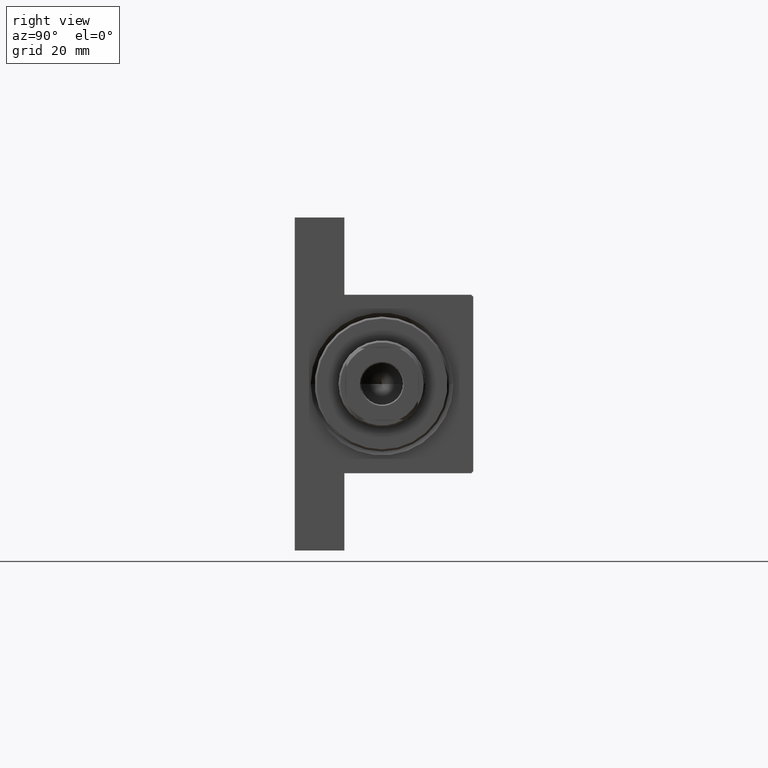
[diagram: clean part render]
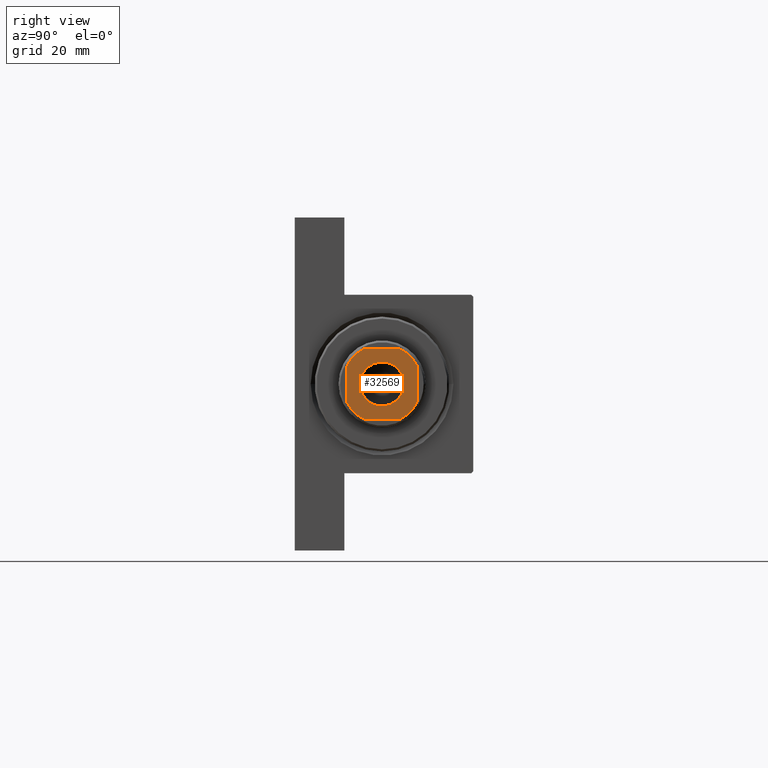
[diagram: same view with one face highlighted and labeled with its STEP entity id]
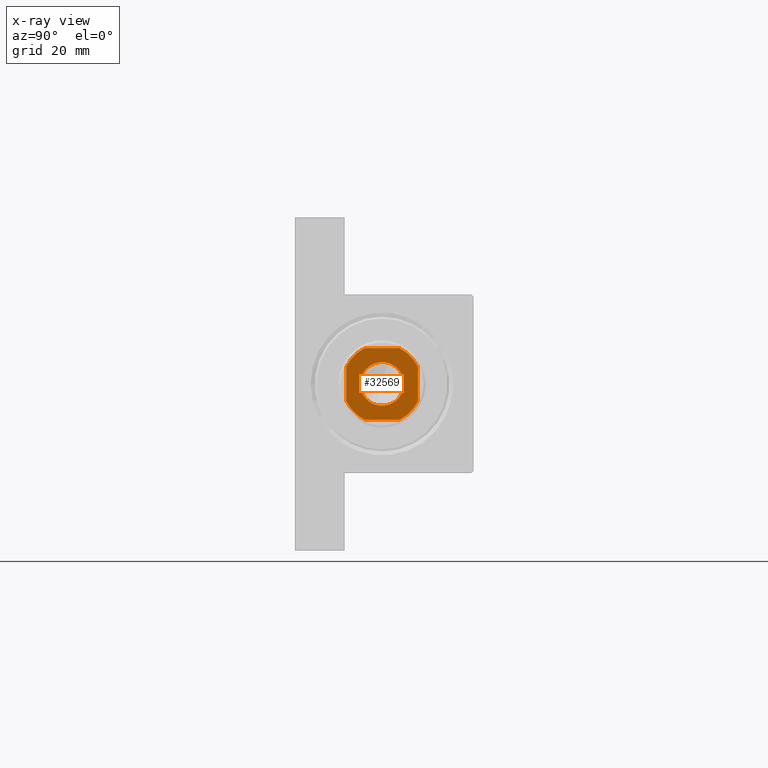
[diagram: x-ray of the same camera — body ghosted, the highlighted face saturated]
A machine part, right view. The second image highlights one B-rep face of the part: STEP entity #32569.
The next image is the same camera in x-ray: the body ghosted, the highlighted face saturated — about 0% of this face is hidden behind the body in this view.
In plain terms, the highlighted planar face has unit normal (1, 0, 0).
Its self-contained STEP definition (entity closure, byte-faithful):
#244 = CARTESIAN_POINT ( 'NONE',  ( 0.000000000000000000, 0.000000000000000000, 123.0000000000000000 ) ) ;
#320 = DIRECTION ( 'NONE',  ( 1.000000000000000000, 0.000000000000000000, 0.000000000000000000 ) ) ;
#721 = VERTEX_POINT ( 'NONE', #32589 ) ;
#897 = CARTESIAN_POINT ( 'NONE',  ( 0.000000000000000000, 0.000000000000000000, 123.0000000000000000 ) ) ;
#1396 = VERTEX_POINT ( 'NONE', #20605 ) ;
#1959 = ORIENTED_EDGE ( 'NONE', *, *, #42703, .T. ) ;
#2520 = CARTESIAN_POINT ( 'NONE',  ( 8.999999999999998224, 4.358898943540600257, 123.0000000000000000 ) ) ;
#2529 = DIRECTION ( 'NONE',  ( -1.000000000000000000, -0.000000000000000000, -0.000000000000000000 ) ) ;
#2768 = PLANE ( 'NONE',  #4955 ) ;
#3167 = EDGE_CURVE ( 'NONE', #33212, #34451, #23285, .T. ) ;
#3175 = ORIENTED_EDGE ( 'NONE', *, *, #43231, .T. ) ;
#3539 = CARTESIAN_POINT ( 'NONE',  ( -4.358898943540671311, 8.999999999999998224, 123.0000000000000000 ) ) ;
#3720 = DIRECTION ( 'NONE',  ( 0.000000000000000000, -0.000000000000000000, -1.000000000000000000 ) ) ;
#4076 = ORIENTED_EDGE ( 'NONE', *, *, #22564, .T. ) ;
#4786 = VECTOR ( 'NONE', #25179, 1000.000000000000000 ) ;
#4955 = AXIS2_PLACEMENT_3D ( 'NONE', #21050, #32108, #39557 ) ;
#5841 = AXIS2_PLACEMENT_3D ( 'NONE', #36678, #18408, #25856 ) ;
#5873 = CARTESIAN_POINT ( 'NONE',  ( -9.000000000000003553, 4.358898943540662430, 123.0000000000000000 ) ) ;
#6297 = ORIENTED_EDGE ( 'NONE', *, *, #15639, .T. ) ;
#6351 = DIRECTION ( 'NONE',  ( -0.000000000000000000, 0.000000000000000000, 1.000000000000000000 ) ) ;
#6380 = FACE_BOUND ( 'NONE', #43539, .T. ) ;
#7580 = CARTESIAN_POINT ( 'NONE',  ( 4.358898943540667759, -9.000000000000001776, 123.0000000000000000 ) ) ;
#8659 = CARTESIAN_POINT ( 'NONE',  ( -5.550000000000013145, 6.796789735267826558E-16, 123.0000000000000000 ) ) ;
#9752 = FACE_OUTER_BOUND ( 'NONE', #44267, .T. ) ;
#10195 = CARTESIAN_POINT ( 'NONE',  ( 8.999999999999996447, 8.999999999999998224, 123.0000000000000000 ) ) ;
#11214 = VERTEX_POINT ( 'NONE', #7580 ) ;
#11568 = DIRECTION ( 'NONE',  ( 0.000000000000000000, -0.000000000000000000, -1.000000000000000000 ) ) ;
#11902 = ORIENTED_EDGE ( 'NONE', *, *, #41594, .T. ) ;
#11934 = VERTEX_POINT ( 'NONE', #26831 ) ;
#12368 = CIRCLE ( 'NONE', #35397, 5.550000000000013145 ) ;
#12454 = VECTOR ( 'NONE', #2529, 1000.000000000000000 ) ;
#13051 = VECTOR ( 'NONE', #43133, 1000.000000000000000 ) ;
#13340 = LINE ( 'NONE', #31377, #33977 ) ;
#14825 = AXIS2_PLACEMENT_3D ( 'NONE', #32487, #43535, #35151 ) ;
#15639 = EDGE_CURVE ( 'NONE', #1396, #18122, #17576, .T. ) ;
#17576 = CIRCLE ( 'NONE', #25237, 5.550000000000013145 ) ;
#17869 = CIRCLE ( 'NONE', #14825, 9.999999999999998224 ) ;
#17955 = VERTEX_POINT ( 'NONE', #33797 ) ;
#18122 = VERTEX_POINT ( 'NONE', #8659 ) ;
#18408 = DIRECTION ( 'NONE',  ( -0.000000000000000000, 0.000000000000000000, 1.000000000000000000 ) ) ;
#20087 = DIRECTION ( 'NONE',  ( 1.000000000000000000, 0.000000000000000000, 0.000000000000000000 ) ) ;
#20605 = CARTESIAN_POINT ( 'NONE',  ( 5.550000000000013145, 0.000000000000000000, 123.0000000000000000 ) ) ;
#20817 = LINE ( 'NONE', #35484, #12454 ) ;
#21050 = CARTESIAN_POINT ( 'NONE',  ( 0.000000000000000000, 0.000000000000000000, 123.0000000000000000 ) ) ;
#21071 = EDGE_CURVE ( 'NONE', #18122, #1396, #12368, .T. ) ;
#22564 = EDGE_CURVE ( 'NONE', #44915, #17955, #43688, .T. ) ;
#22577 = DIRECTION ( 'NONE',  ( -0.000000000000000000, 0.000000000000000000, 1.000000000000000000 ) ) ;
#23285 = LINE ( 'NONE', #10195, #13051 ) ;
#23466 = ORIENTED_EDGE ( 'NONE', *, *, #44487, .T. ) ;
#23561 = CIRCLE ( 'NONE', #35088, 9.999999999999966249 ) ;
#25179 = DIRECTION ( 'NONE',  ( 9.637352644315595243E-17, -1.000000000000000000, 0.000000000000000000 ) ) ;
#25237 = AXIS2_PLACEMENT_3D ( 'NONE', #40512, #3720, #320 ) ;
#25856 = DIRECTION ( 'NONE',  ( 1.000000000000000000, 0.000000000000000000, 0.000000000000000000 ) ) ;
#26831 = CARTESIAN_POINT ( 'NONE',  ( -4.358898943540667759, -9.000000000000001776, 123.0000000000000000 ) ) ;
#27524 = ORIENTED_EDGE ( 'NONE', *, *, #3167, .T. ) ;
#27943 = ORIENTED_EDGE ( 'NONE', *, *, #42767, .T. ) ;
#28360 = VERTEX_POINT ( 'NONE', #3539 ) ;
#30265 = DIRECTION ( 'NONE',  ( 1.000000000000000000, 0.000000000000000000, 0.000000000000000000 ) ) ;
#30420 = CIRCLE ( 'NONE', #5841, 9.999999999999996447 ) ;
#30913 = ORIENTED_EDGE ( 'NONE', *, *, #21071, .T. ) ;
#31377 = CARTESIAN_POINT ( 'NONE',  ( -9.000000000000001776, -9.000000000000001776, 123.0000000000000000 ) ) ;
#31673 = CIRCLE ( 'NONE', #32429, 9.999999999999998224 ) ;
#32108 = DIRECTION ( 'NONE',  ( -0.000000000000000000, 0.000000000000000000, 1.000000000000000000 ) ) ;
#32429 = AXIS2_PLACEMENT_3D ( 'NONE', #32878, #6351, #38833 ) ;
#32487 = CARTESIAN_POINT ( 'NONE',  ( 0.000000000000000000, 0.000000000000000000, 123.0000000000000000 ) ) ;
#32569 = ADVANCED_FACE ( 'NONE', ( #6380, #9752 ), #2768, .T. ) ;
#32589 = CARTESIAN_POINT ( 'NONE',  ( 4.358898943540597593, 8.999999999999998224, 123.0000000000000000 ) ) ;
#32878 = CARTESIAN_POINT ( 'NONE',  ( 0.000000000000000000, 0.000000000000000000, 123.0000000000000000 ) ) ;
#33212 = VERTEX_POINT ( 'NONE', #36555 ) ;
#33462 = DIRECTION ( 'NONE',  ( 1.000000000000000000, 0.000000000000000000, 0.000000000000000000 ) ) ;
#33797 = CARTESIAN_POINT ( 'NONE',  ( -9.000000000000003553, -4.358898943540665094, 123.0000000000000000 ) ) ;
#33977 = VECTOR ( 'NONE', #20087, 1000.000000000000000 ) ;
#34451 = VERTEX_POINT ( 'NONE', #2520 ) ;
#35088 = AXIS2_PLACEMENT_3D ( 'NONE', #897, #22577, #30265 ) ;
#35151 = DIRECTION ( 'NONE',  ( 1.000000000000000000, 0.000000000000000000, 0.000000000000000000 ) ) ;
#35397 = AXIS2_PLACEMENT_3D ( 'NONE', #244, #11568, #33462 ) ;
#35484 = CARTESIAN_POINT ( 'NONE',  ( -9.000000000000003553, 8.999999999999998224, 123.0000000000000000 ) ) ;
#36555 = CARTESIAN_POINT ( 'NONE',  ( 8.999999999999998224, -4.358898943540672200, 123.0000000000000000 ) ) ;
#36636 = EDGE_CURVE ( 'NONE', #28360, #44915, #30420, .T. ) ;
#36678 = CARTESIAN_POINT ( 'NONE',  ( 0.000000000000000000, 0.000000000000000000, 123.0000000000000000 ) ) ;
#38833 = DIRECTION ( 'NONE',  ( 1.000000000000000000, 0.000000000000000000, 0.000000000000000000 ) ) ;
#39557 = DIRECTION ( 'NONE',  ( 1.000000000000000000, 0.000000000000000000, 0.000000000000000000 ) ) ;
#40512 = CARTESIAN_POINT ( 'NONE',  ( 0.000000000000000000, 0.000000000000000000, 123.0000000000000000 ) ) ;
#41594 = EDGE_CURVE ( 'NONE', #34451, #721, #23561, .T. ) ;
#42703 = EDGE_CURVE ( 'NONE', #11214, #33212, #31673, .T. ) ;
#42767 = EDGE_CURVE ( 'NONE', #11934, #11214, #13340, .T. ) ;
#43133 = DIRECTION ( 'NONE',  ( -1.927470528863119049E-16, 1.000000000000000000, -0.000000000000000000 ) ) ;
#43231 = EDGE_CURVE ( 'NONE', #721, #28360, #20817, .T. ) ;
#43451 = CARTESIAN_POINT ( 'NONE',  ( -9.000000000000003553, 8.999999999999998224, 123.0000000000000000 ) ) ;
#43535 = DIRECTION ( 'NONE',  ( -0.000000000000000000, 0.000000000000000000, 1.000000000000000000 ) ) ;
#43539 = EDGE_LOOP ( 'NONE', ( #6297, #30913 ) ) ;
#43688 = LINE ( 'NONE', #43451, #4786 ) ;
#44267 = EDGE_LOOP ( 'NONE', ( #27524, #11902, #3175, #45731, #4076, #23466, #27943, #1959 ) ) ;
#44487 = EDGE_CURVE ( 'NONE', #17955, #11934, #17869, .T. ) ;
#44915 = VERTEX_POINT ( 'NONE', #5873 ) ;
#45731 = ORIENTED_EDGE ( 'NONE', *, *, #36636, .T. ) ;